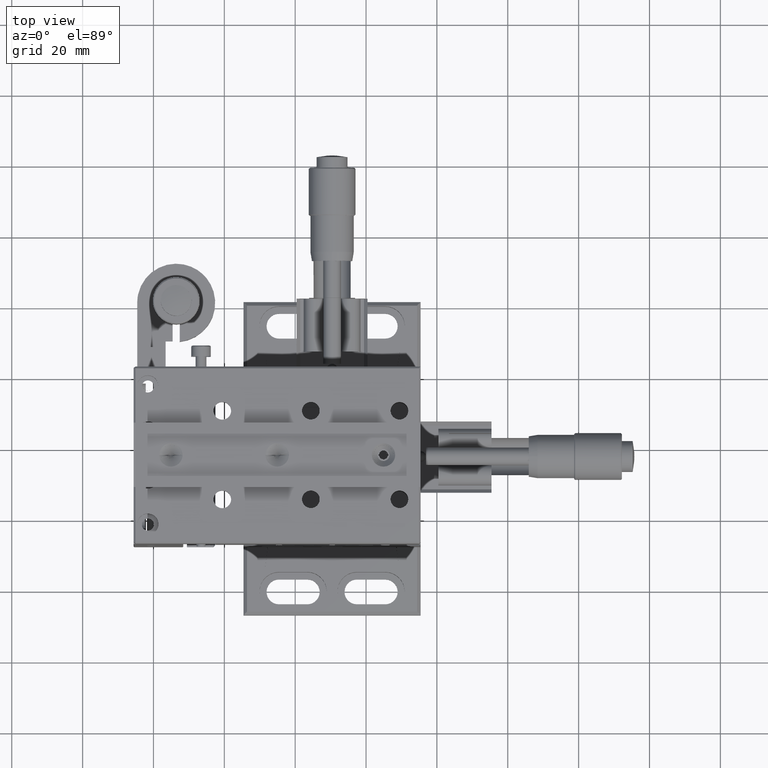
[diagram: clean part render]
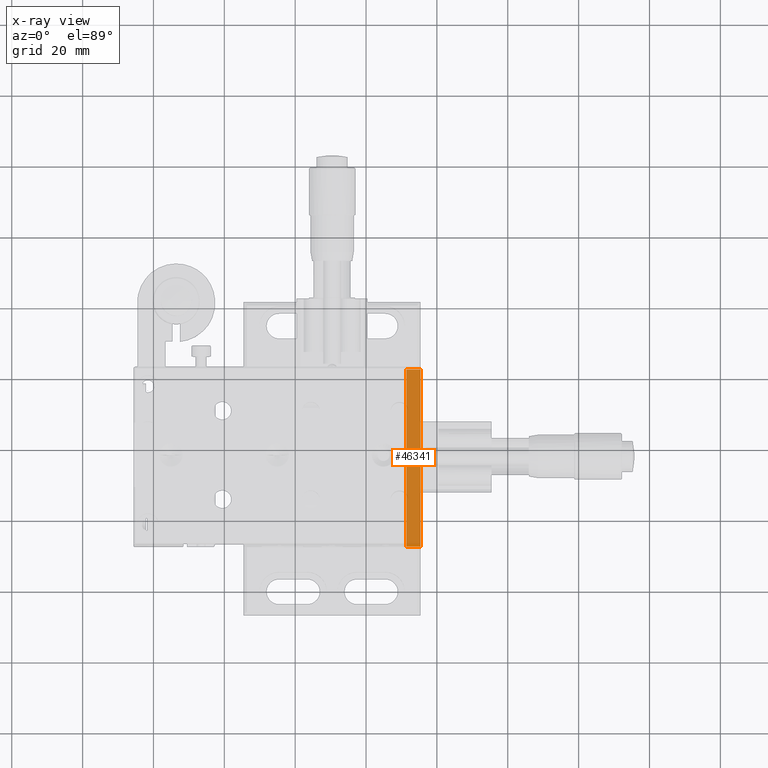
[diagram: x-ray — body ghosted, one internal face saturated and labeled with its STEP entity id]
A machine part, top view, then the same camera in x-ray: the body is ghosted and one INTERNAL B-rep face — a face not visible from any outside direction — is saturated and labeled: STEP entity #46341.
In plain terms, the highlighted face is a freeform B-spline surface patch.
Its self-contained STEP definition (entity closure, byte-faithful):
#2771 = CARTESIAN_POINT ( 'NONE',  ( 31.41923232115940223, -27.49928257186589775, -7.421872138184400391 ) ) ;
#2786 = EDGE_LOOP ( 'NONE', ( #23639, #13468, #44187, #7482 ) ) ;
#4317 = EDGE_CURVE ( 'NONE', #28397, #32117, #13177, .T. ) ;
#7482 = ORIENTED_EDGE ( 'NONE', *, *, #20264, .T. ) ;
#9634 = B_SPLINE_CURVE_WITH_KNOTS ( 'NONE', 1,
 ( #25306, #39846 ),
 .UNSPECIFIED., .F., .F.,
 ( 2, 2 ),
 ( 0.000000000000000000, 1.000000000000000000 ),
 .UNSPECIFIED. ) ;
#13177 = B_SPLINE_CURVE_WITH_KNOTS ( 'NONE', 1,
 ( #22795, #26765 ),
 .UNSPECIFIED., .F., .F.,
 ( 2, 2 ),
 ( -1.000000000000000000, 0.000000000000000000 ),
 .UNSPECIFIED. ) ;
#13267 = CARTESIAN_POINT ( 'NONE',  ( 31.41923232115940223, -27.49928257186595104, -7.421872138184400391 ) ) ;
#13468 = ORIENTED_EDGE ( 'NONE', *, *, #39922, .T. ) ;
#18870 = VERTEX_POINT ( 'NONE', #36529 ) ;
#20264 = EDGE_CURVE ( 'NONE', #18870, #28397, #36847, .T. ) ;
#22795 = CARTESIAN_POINT ( 'NONE',  ( 31.41923232115940223, -27.49928257186595104, -7.421872138184400391 ) ) ;
#23639 = ORIENTED_EDGE ( 'NONE', *, *, #4317, .T. ) ;
#24124 = CARTESIAN_POINT ( 'NONE',  ( 35.39275603792469838, 22.50071742813409870, -7.381329456108679743 ) ) ;
#24309 = FACE_OUTER_BOUND ( 'NONE', #2786, .T. ) ;
#24538 = CARTESIAN_POINT ( 'NONE',  ( 35.41923232115939868, 22.50071742813409870, -7.421872138184400391 ) ) ;
#24705 = CARTESIAN_POINT ( 'NONE',  ( 31.41923232115940223, 22.50071742813409870, -7.421872138184400391 ) ) ;
#25306 = CARTESIAN_POINT ( 'NONE',  ( 35.39275603792469838, 22.50071742813409870, -7.381329456108679743 ) ) ;
#25712 = VERTEX_POINT ( 'NONE', #24124 ) ;
#26765 = CARTESIAN_POINT ( 'NONE',  ( 31.41923232115940223, 22.50071742813409870, -7.421872138184400391 ) ) ;
#27893 = CARTESIAN_POINT ( 'NONE',  ( 31.41923232115940223, 22.50071742813409870, -7.421872138184400391 ) ) ;
#28397 = VERTEX_POINT ( 'NONE', #13267 ) ;
#29046 = CARTESIAN_POINT ( 'NONE',  ( 35.39275603792469838, -27.49928257186589775, -7.381329456108679743 ) ) ;
#32117 = VERTEX_POINT ( 'NONE', #24705 ) ;
#34632 = B_SPLINE_CURVE_WITH_KNOTS ( 'NONE', 1,
 ( #27893, #45505 ),
 .UNSPECIFIED., .F., .F.,
 ( 2, 2 ),
 ( -1.000000000000000000, 0.000000000000000000 ),
 .UNSPECIFIED. ) ;
#34850 = CARTESIAN_POINT ( 'NONE',  ( 35.41923232115939868, -27.49928257186589775, -7.421872138184400391 ) ) ;
#36529 = CARTESIAN_POINT ( 'NONE',  ( 35.39275603792469838, -27.49928257186589775, -7.381329456108679743 ) ) ;
#36847 = B_SPLINE_CURVE_WITH_KNOTS ( 'NONE', 1,
 ( #29046, #43370 ),
 .UNSPECIFIED., .F., .F.,
 ( 2, 2 ),
 ( 0.000000000000000000, 1.000000000000000000 ),
 .UNSPECIFIED. ) ;
#38617 = CARTESIAN_POINT ( 'NONE',  ( 31.41923232115940223, 22.50071742813409870, -7.421872138184400391 ) ) ;
#39846 = CARTESIAN_POINT ( 'NONE',  ( 35.39275603792469838, -27.49928257186589775, -7.381329456108679743 ) ) ;
#39922 = EDGE_CURVE ( 'NONE', #32117, #25712, #34632, .T. ) ;
#43370 = CARTESIAN_POINT ( 'NONE',  ( 31.41923232115940223, -27.49928257186595104, -7.421872138184400391 ) ) ;
#43383 = EDGE_CURVE ( 'NONE', #25712, #18870, #9634, .T. ) ;
#44187 = ORIENTED_EDGE ( 'NONE', *, *, #43383, .T. ) ;
#44276 = B_SPLINE_SURFACE_WITH_KNOTS ( 'NONE', 1, 1, ( 
 ( #24538, #38617 ),
 ( #34850, #2771 ) ),
 .UNSPECIFIED., .F., .F., .F.,
 ( 2, 2 ),
 ( 2, 2 ),
 ( 0.000000000000000000, 1.000000000000000000 ),
 ( 0.000000000000000000, 1.000000000000000000 ),
 .UNSPECIFIED. ) ;
#45505 = CARTESIAN_POINT ( 'NONE',  ( 35.39275603792469838, 22.50071742813409870, -7.381329456108679743 ) ) ;
#46341 = ADVANCED_FACE ( 'NONE', ( #24309 ), #44276, .T. ) ;